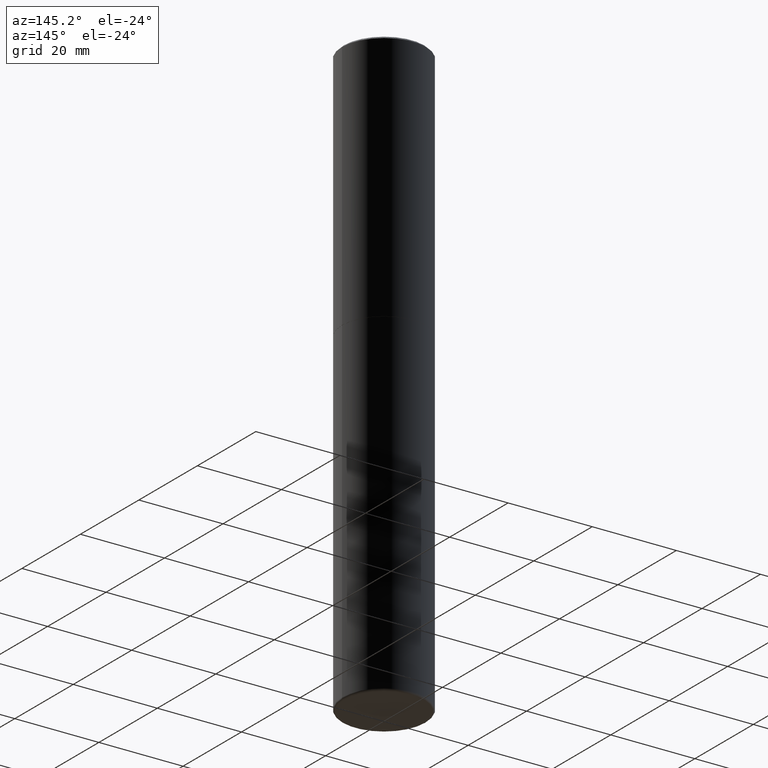
[diagram: clean part render]
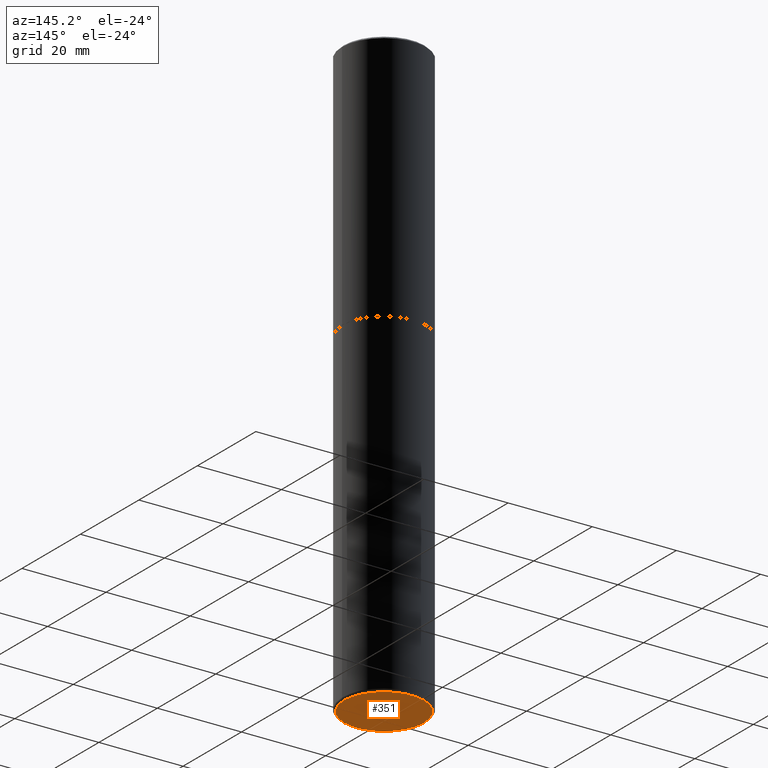
[diagram: same view with one face highlighted and labeled with its STEP entity id]
A machine part, auxiliary view. The second image highlights one B-rep face of the part: STEP entity #351.
In plain terms, the highlighted planar face has unit normal (0, -0, -1).
Its self-contained STEP definition (entity closure, byte-faithful):
#34 = ORIENTED_EDGE ( 'NONE', *, *, #356, .F. ) ;
#35 = DIRECTION ( 'NONE',  ( -2.445468806185136597E-29, 3.491481338843145583E-15, 1.000000000000000000 ) ) ;
#41 = DIRECTION ( 'NONE',  ( -2.445468806185136597E-29, 3.491481338843145583E-15, 1.000000000000000000 ) ) ;
#58 = VERTEX_POINT ( 'NONE', #94 ) ;
#69 = DIRECTION ( 'NONE',  ( 1.000000000000000000, -6.982962677686265133E-15, 0.000000000000000000 ) ) ;
#75 = CARTESIAN_POINT ( 'NONE',  ( 1.347893496593123646E-28, -1.924434684343564878E-14, -5.511800000000000033 ) ) ;
#92 = AXIS2_PLACEMENT_3D ( 'NONE', #330, #104, #390 ) ;
#94 = CARTESIAN_POINT ( 'NONE',  ( 0.3739999999999999991, -2.185597488489031278E-14, -5.511800000000000033 ) ) ;
#104 = DIRECTION ( 'NONE',  ( 2.438088387897960049E-29, -3.491481338843145188E-15, -1.000000000000000000 ) ) ;
#105 = AXIS2_PLACEMENT_3D ( 'NONE', #391, #41, #69 ) ;
#127 = AXIS2_PLACEMENT_3D ( 'NONE', #75, #35, #166 ) ;
#166 = DIRECTION ( 'NONE',  ( 1.000000000000000000, -6.982962677686265133E-15, 0.000000000000000000 ) ) ;
#176 = CIRCLE ( 'NONE', #105, 0.3739999999999999991 ) ;
#231 = FACE_OUTER_BOUND ( 'NONE', #371, .T. ) ;
#244 = CARTESIAN_POINT ( 'NONE',  ( -0.3739999999999999991, -1.648253746103290003E-14, -5.511800000000000033 ) ) ;
#274 = EDGE_CURVE ( 'NONE', #58, #408, #394, .T. ) ;
#298 = ORIENTED_EDGE ( 'NONE', *, *, #274, .F. ) ;
#330 = CARTESIAN_POINT ( 'NONE',  ( 1.347893496593123646E-28, -1.924434684343564878E-14, -5.511800000000000033 ) ) ;
#331 = PLANE ( 'NONE',  #92 ) ;
#351 = ADVANCED_FACE ( 'NONE', ( #231 ), #331, .T. ) ;
#356 = EDGE_CURVE ( 'NONE', #408, #58, #176, .T. ) ;
#371 = EDGE_LOOP ( 'NONE', ( #298, #34 ) ) ;
#390 = DIRECTION ( 'NONE',  ( -1.000000000000000000, 6.982962677686265922E-15, -4.876176775795935793E-29 ) ) ;
#391 = CARTESIAN_POINT ( 'NONE',  ( 1.347893496593123646E-28, -1.924434684343564878E-14, -5.511800000000000033 ) ) ;
#394 = CIRCLE ( 'NONE', #127, 0.3739999999999999991 ) ;
#408 = VERTEX_POINT ( 'NONE', #244 ) ;